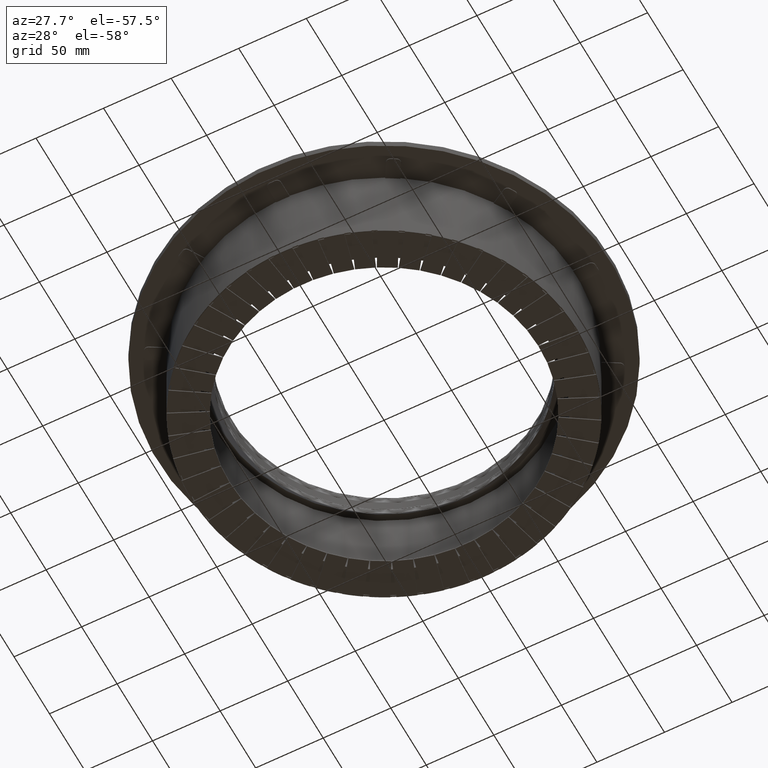
[diagram: clean part render]
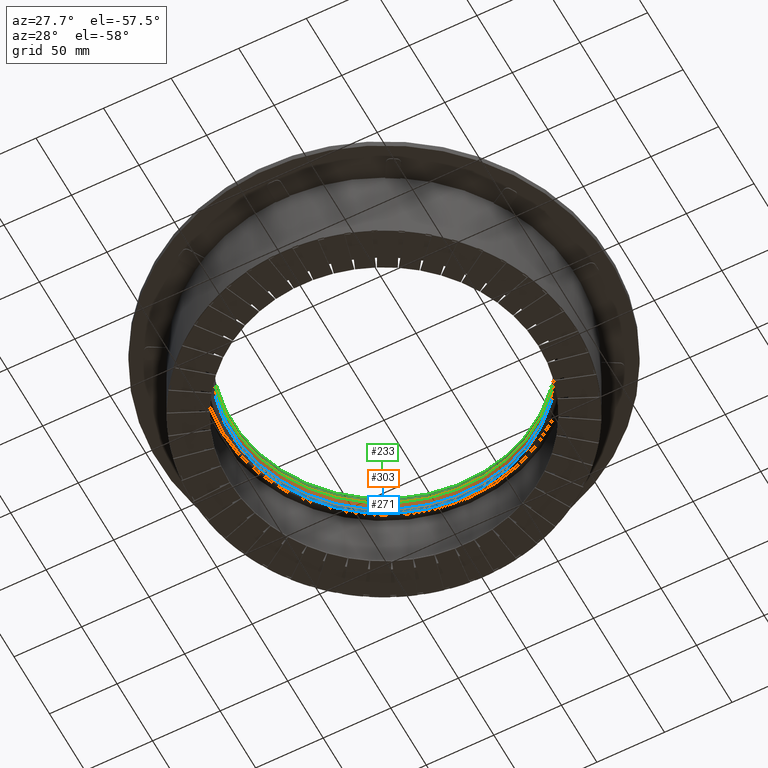
[diagram: same view with three faces highlighted in distinct colors, each labeled with its STEP entity id]
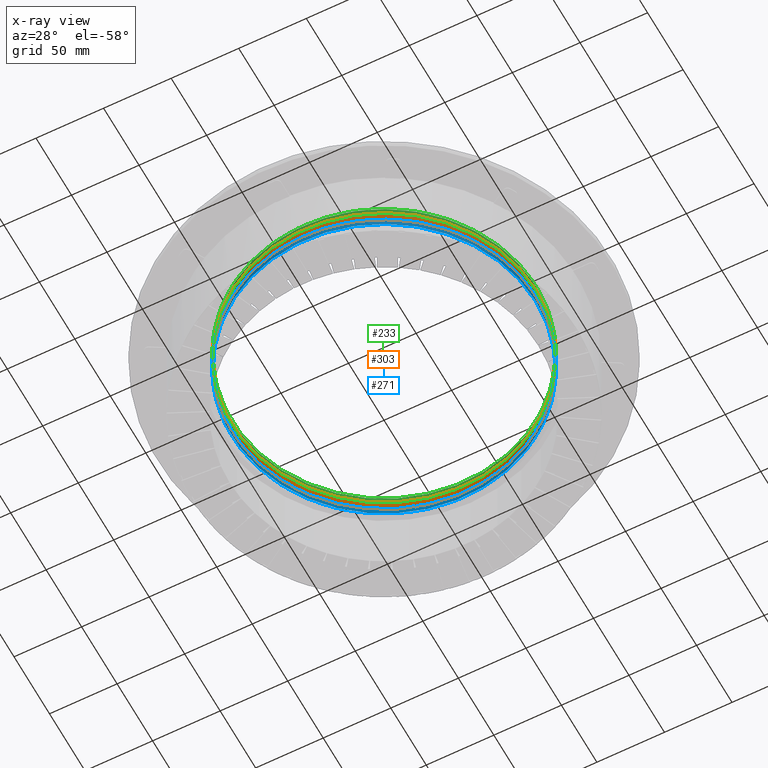
[diagram: x-ray of the same camera — body ghosted, the three highlighted faces saturated]
A machine part, auxiliary view with three faces highlighted in distinct colors.
The next image is the same camera in x-ray (body ghosted, the three faces saturated) — at least one of them is partly hidden behind the body in this view.
Their STEP definitions:

[orange] entity #303 — the highlighted cylindrical surface (bore or boss wall) has radius 112.5 mm, axis along (-0, 0, -1).
#205=CARTESIAN_POINT('',(112.5,-3.194574E-015,67.59999999999998));
#206=VERTEX_POINT('',#205);
#224=CARTESIAN_POINT('',(8.095337E-015,-3.194574E-015,67.599999999999994));
#225=DIRECTION('',(0.0,0.0,1.0));
#226=DIRECTION('',(1.0,0.0,0.0));
#227=AXIS2_PLACEMENT_3D('',#224,#225,#226);
#228=CIRCLE('',#227,112.5);
#229=EDGE_CURVE('',#206,#206,#228,.T.);
#245=CARTESIAN_POINT('',(112.5,-3.194574E-015,59.600000000000009));
#246=VERTEX_POINT('',#245);
#254=CARTESIAN_POINT('',(7.131620E-015,-3.194574E-015,59.600000000000023));
#255=DIRECTION('',(0.0,0.0,-1.0));
#256=DIRECTION('',(1.0,0.0,0.0));
#257=AXIS2_PLACEMENT_3D('',#254,#255,#256);
#258=CIRCLE('',#257,112.5);
#259=EDGE_CURVE('',#246,#246,#258,.T.);
#292=CARTESIAN_POINT('',(7.613478E-015,-3.194574E-015,63.600000000000023));
#293=DIRECTION('',(-1.204647E-016,0.0,-1.0));
#294=DIRECTION('',(1.0,0.0,0.0));
#295=AXIS2_PLACEMENT_3D('',#292,#293,#294);
#296=CYLINDRICAL_SURFACE('',#295,112.5);
#297=ORIENTED_EDGE('',*,*,#259,.T.);
#298=EDGE_LOOP('',(#297));
#299=FACE_OUTER_BOUND('',#298,.T.);
#300=ORIENTED_EDGE('',*,*,#229,.T.);
#301=EDGE_LOOP('',(#300));
#302=FACE_BOUND('',#301,.T.);
#303=ADVANCED_FACE('',(#299,#302),#296,.F.);

[blue] entity #271 — the highlighted face is a SurfaceOfRevolution surface.
#234=CARTESIAN_POINT('',(112.5,-3.194574E-015,57.100000000000009));
#235=DIRECTION('',(0.0,-1.0,0.0));
#236=DIRECTION('',(0.0,0.0,1.0));
#237=AXIS2_PLACEMENT_3D('',#234,#235,#236);
#238=ELLIPSE('',#237,2.5,0.5);
#239=CARTESIAN_POINT('',(6.529666E-015,-3.194574E-015,54.603075000000025));
#240=DIRECTION('',(1.204647E-016,0.0,1.0));
#241=AXIS1_PLACEMENT('',#239,#240);
#242=SURFACE_OF_REVOLUTION('',#238,#241);
#243=CARTESIAN_POINT('',(112.5,-3.194574E-015,54.600000000000009));
#244=VERTEX_POINT('',#243);
#245=CARTESIAN_POINT('',(112.5,-3.194574E-015,59.600000000000009));
#246=VERTEX_POINT('',#245);
#247=CARTESIAN_POINT('',(112.5,-3.194574E-015,57.100000000000009));
#248=DIRECTION('',(0.0,1.0,0.0));
#249=DIRECTION('',(0.0,0.0,1.0));
#250=AXIS2_PLACEMENT_3D('',#247,#248,#249);
#251=ELLIPSE('',#250,2.5,0.5);
#252=EDGE_CURVE('',#244,#246,#251,.T.);
#253=ORIENTED_EDGE('',*,*,#252,.T.);
#254=CARTESIAN_POINT('',(7.131620E-015,-3.194574E-015,59.600000000000023));
#255=DIRECTION('',(0.0,0.0,-1.0));
#256=DIRECTION('',(1.0,0.0,0.0));
#257=AXIS2_PLACEMENT_3D('',#254,#255,#256);
#258=CIRCLE('',#257,112.5);
#259=EDGE_CURVE('',#246,#246,#258,.T.);
#260=ORIENTED_EDGE('',*,*,#259,.F.);
#261=ORIENTED_EDGE('',*,*,#252,.F.);
#262=CARTESIAN_POINT('',(6.529296E-015,-3.194574E-015,54.600000000000023));
#263=DIRECTION('',(0.0,0.0,1.0));
#264=DIRECTION('',(1.0,0.0,0.0));
#265=AXIS2_PLACEMENT_3D('',#262,#263,#264);
#266=CIRCLE('',#265,112.5);
#267=EDGE_CURVE('',#244,#244,#266,.T.);
#268=ORIENTED_EDGE('',*,*,#267,.F.);
#269=EDGE_LOOP('',(#253,#260,#261,#268));
#270=FACE_OUTER_BOUND('',#269,.T.);
#271=ADVANCED_FACE('',(#270),#242,.T.);

[green] entity #233 — the highlighted face is a SurfaceOfRevolution surface.
#196=CARTESIAN_POINT('',(112.5,-3.194574E-015,70.099999999999966));
#197=DIRECTION('',(0.0,-1.0,0.0));
#198=DIRECTION('',(0.0,0.0,1.0));
#199=AXIS2_PLACEMENT_3D('',#196,#197,#198);
#200=ELLIPSE('',#199,2.5,0.5);
#201=CARTESIAN_POINT('',(8.697658E-015,-3.194574E-015,72.599981335367588));
#202=DIRECTION('',(1.204647E-016,0.0,1.0));
#203=AXIS1_PLACEMENT('',#201,#202);
#204=SURFACE_OF_REVOLUTION('',#200,#203);
#205=CARTESIAN_POINT('',(112.5,-3.194574E-015,67.59999999999998));
#206=VERTEX_POINT('',#205);
#207=CARTESIAN_POINT('',(112.5,-3.194574E-015,72.599999999999966));
#208=VERTEX_POINT('',#207);
#209=CARTESIAN_POINT('',(112.5,-3.194574E-015,70.099999999999966));
#210=DIRECTION('',(0.0,1.0,0.0));
#211=DIRECTION('',(0.0,0.0,1.0));
#212=AXIS2_PLACEMENT_3D('',#209,#210,#211);
#213=ELLIPSE('',#212,2.5,0.5);
#214=EDGE_CURVE('',#206,#208,#213,.T.);
#215=ORIENTED_EDGE('',*,*,#214,.T.);
#216=CARTESIAN_POINT('',(8.697661E-015,-3.194574E-015,72.599999999999994));
#217=DIRECTION('',(0.0,0.0,-1.0));
#218=DIRECTION('',(1.0,0.0,0.0));
#219=AXIS2_PLACEMENT_3D('',#216,#217,#218);
#220=CIRCLE('',#219,112.5);
#221=EDGE_CURVE('',#208,#208,#220,.T.);
#222=ORIENTED_EDGE('',*,*,#221,.F.);
#223=ORIENTED_EDGE('',*,*,#214,.F.);
#224=CARTESIAN_POINT('',(8.095337E-015,-3.194574E-015,67.599999999999994));
#225=DIRECTION('',(0.0,0.0,1.0));
#226=DIRECTION('',(1.0,0.0,0.0));
#227=AXIS2_PLACEMENT_3D('',#224,#225,#226);
#228=CIRCLE('',#227,112.5);
#229=EDGE_CURVE('',#206,#206,#228,.T.);
#230=ORIENTED_EDGE('',*,*,#229,.F.);
#231=EDGE_LOOP('',(#215,#222,#223,#230));
#232=FACE_OUTER_BOUND('',#231,.T.);
#233=ADVANCED_FACE('',(#232),#204,.T.);